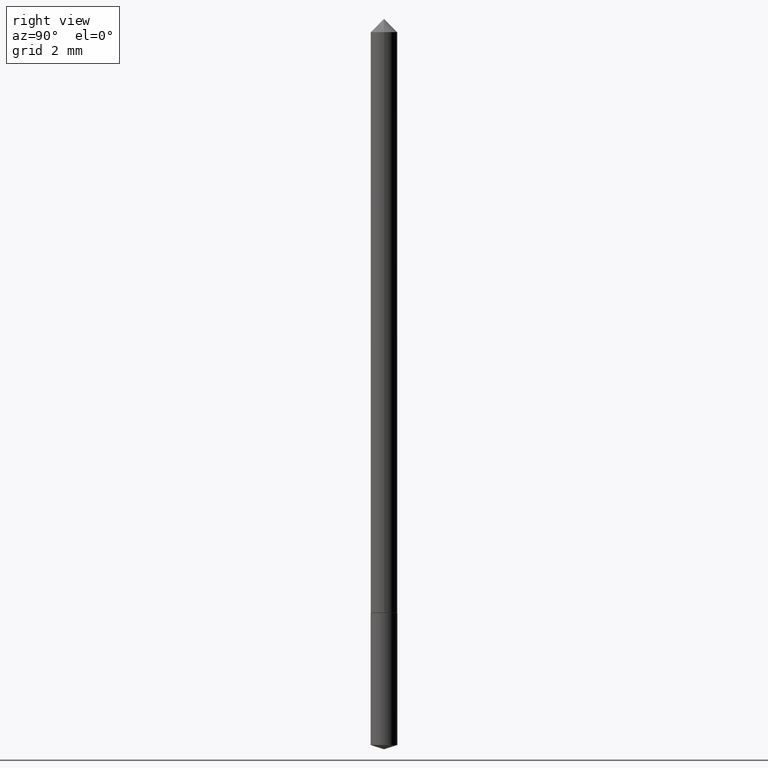
[diagram: clean part render]
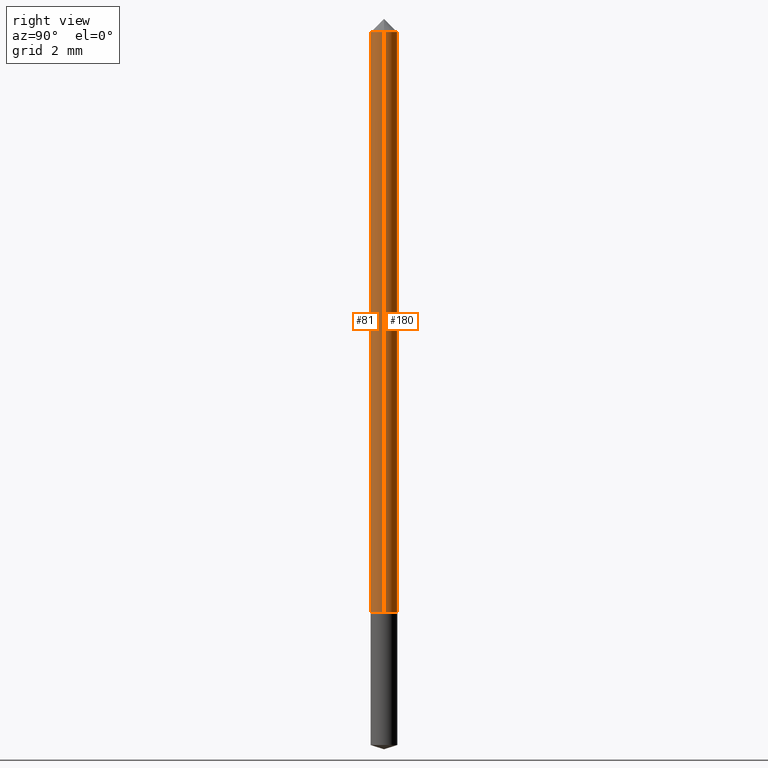
[diagram: same view with one multi-face feature highlighted, each face labeled with its STEP entity id]
A machine part, right view. The highlighted faces form ONE feature: a constant-radius fillet chain: 2 tangent blend faces with common blend radius 0.4496 mm. The faces share edges in the B-rep.
Their STEP definitions:
[1] entity #81 (Cylinder):
#1 = CARTESIAN_POINT ( 'NONE',  ( -0.01770000000000005250, 1.257660642295381059E-16, -8.706515109751208922E-31 ) ) ;
#9 = ORIENTED_EDGE ( 'NONE', *, *, #195, .F. ) ;
#45 = VERTEX_POINT ( 'NONE', #224 ) ;
#49 = FACE_OUTER_BOUND ( 'NONE', #244, .T. ) ;
#58 = DIRECTION ( 'NONE',  ( 1.000000000000000000, -6.982962677686266711E-15, 4.876176775795935793E-29 ) ) ;
#62 = ORIENTED_EDGE ( 'NONE', *, *, #303, .F. ) ;
#71 = DIRECTION ( 'NONE',  ( -2.445468806185136597E-29, 3.491481338843145583E-15, 1.000000000000000000 ) ) ;
#80 = AXIS2_PLACEMENT_3D ( 'NONE', #118, #216, #192 ) ;
#81 = ADVANCED_FACE ( 'NONE', ( #49 ), #104, .T. ) ;
#104 = CYLINDRICAL_SURFACE ( 'NONE', #176, 0.01770000000000005250 ) ;
#118 = CARTESIAN_POINT ( 'NONE',  ( 7.642090019328600035E-31, -1.091087918388489897E-16, -0.03125000000000020123 ) ) ;
#122 = VERTEX_POINT ( 'NONE', #222 ) ;
#124 = CARTESIAN_POINT ( 'NONE',  ( 1.962977810724808948E-29, -2.802612070689392664E-15, -0.8026999999999998581 ) ) ;
#146 = CARTESIAN_POINT ( 'NONE',  ( -0.01770000000000000392, -1.330094367034580829E-15, -0.03125000000000020123 ) ) ;
#152 = CIRCLE ( 'NONE', #80, 0.01770000000000000392 ) ;
#154 = ORIENTED_EDGE ( 'NONE', *, *, #284, .T. ) ;
#161 = VECTOR ( 'NONE', #207, 39.37007874015748143 ) ;
#163 = CARTESIAN_POINT ( 'NONE',  ( 0.000000000000000000, 0.000000000000000000, 0.000000000000000000 ) ) ;
#176 = AXIS2_PLACEMENT_3D ( 'NONE', #163, #301, #58 ) ;
#183 = DIRECTION ( 'NONE',  ( 1.000000000000000000, -6.982962677686261189E-15, 0.000000000000000000 ) ) ;
#189 = ORIENTED_EDGE ( 'NONE', *, *, #320, .T. ) ;
#192 = DIRECTION ( 'NONE',  ( 1.000000000000000000, -6.982962677686265922E-15, 0.000000000000000000 ) ) ;
#195 = EDGE_CURVE ( 'NONE', #313, #220, #249, .T. ) ;
#207 = DIRECTION ( 'NONE',  ( -2.445468806185136877E-29, 3.491481338843145188E-15, 1.000000000000000000 ) ) ;
#216 = DIRECTION ( 'NONE',  ( -2.445468806185136597E-29, 3.491481338843145583E-15, 1.000000000000000000 ) ) ;
#219 = CARTESIAN_POINT ( 'NONE',  ( 0.01770000000000005250, -1.235984393950472844E-16, 8.630832893158832123E-31 ) ) ;
#220 = VERTEX_POINT ( 'NONE', #146 ) ;
#222 = CARTESIAN_POINT ( 'NONE',  ( 0.01770000000000000392, -2.327072312338959414E-16, -0.03125000000000020123 ) ) ;
#224 = CARTESIAN_POINT ( 'NONE',  ( 0.01770000000000009760, -2.926210510084440245E-15, -0.8026999999999998581 ) ) ;
#225 = AXIS2_PLACEMENT_3D ( 'NONE', #124, #71, #183 ) ;
#238 = VECTOR ( 'NONE', #310, 39.37007874015748143 ) ;
#243 = LINE ( 'NONE', #219, #238 ) ;
#244 = EDGE_LOOP ( 'NONE', ( #9, #154, #189, #62 ) ) ;
#249 = LINE ( 'NONE', #1, #161 ) ;
#284 = EDGE_CURVE ( 'NONE', #313, #45, #361, .T. ) ;
#301 = DIRECTION ( 'NONE',  ( -2.445468806185136597E-29, 3.491481338843145583E-15, 1.000000000000000000 ) ) ;
#303 = EDGE_CURVE ( 'NONE', #220, #122, #152, .T. ) ;
#310 = DIRECTION ( 'NONE',  ( -2.445468806185136877E-29, 3.491481338843145188E-15, 1.000000000000000000 ) ) ;
#313 = VERTEX_POINT ( 'NONE', #336 ) ;
#320 = EDGE_CURVE ( 'NONE', #45, #122, #243, .T. ) ;
#336 = CARTESIAN_POINT ( 'NONE',  ( -0.01770000000000009760, -2.676846006459854189E-15, -0.8026999999999998581 ) ) ;
#361 = CIRCLE ( 'NONE', #225, 0.01770000000000009760 ) ;
[2] entity #180 (Cylinder):
#1 = CARTESIAN_POINT ( 'NONE',  ( -0.01770000000000005250, 1.257660642295381059E-16, -8.706515109751208922E-31 ) ) ;
#35 = FACE_OUTER_BOUND ( 'NONE', #346, .T. ) ;
#44 = AXIS2_PLACEMENT_3D ( 'NONE', #255, #257, #335 ) ;
#45 = VERTEX_POINT ( 'NONE', #224 ) ;
#67 = EDGE_CURVE ( 'NONE', #45, #313, #112, .T. ) ;
#112 = CIRCLE ( 'NONE', #44, 0.01770000000000009760 ) ;
#122 = VERTEX_POINT ( 'NONE', #222 ) ;
#126 = CIRCLE ( 'NONE', #182, 0.01770000000000000392 ) ;
#127 = ORIENTED_EDGE ( 'NONE', *, *, #160, .F. ) ;
#139 = DIRECTION ( 'NONE',  ( -2.445468806185136597E-29, 3.491481338843145583E-15, 1.000000000000000000 ) ) ;
#146 = CARTESIAN_POINT ( 'NONE',  ( -0.01770000000000000392, -1.330094367034580829E-15, -0.03125000000000020123 ) ) ;
#160 = EDGE_CURVE ( 'NONE', #122, #220, #126, .T. ) ;
#161 = VECTOR ( 'NONE', #207, 39.37007874015748143 ) ;
#180 = ADVANCED_FACE ( 'NONE', ( #35 ), #246, .T. ) ;
#182 = AXIS2_PLACEMENT_3D ( 'NONE', #333, #285, #228 ) ;
#195 = EDGE_CURVE ( 'NONE', #313, #220, #249, .T. ) ;
#202 = ORIENTED_EDGE ( 'NONE', *, *, #320, .F. ) ;
#207 = DIRECTION ( 'NONE',  ( -2.445468806185136877E-29, 3.491481338843145188E-15, 1.000000000000000000 ) ) ;
#219 = CARTESIAN_POINT ( 'NONE',  ( 0.01770000000000005250, -1.235984393950472844E-16, 8.630832893158832123E-31 ) ) ;
#220 = VERTEX_POINT ( 'NONE', #146 ) ;
#222 = CARTESIAN_POINT ( 'NONE',  ( 0.01770000000000000392, -2.327072312338959414E-16, -0.03125000000000020123 ) ) ;
#223 = ORIENTED_EDGE ( 'NONE', *, *, #67, .T. ) ;
#224 = CARTESIAN_POINT ( 'NONE',  ( 0.01770000000000009760, -2.926210510084440245E-15, -0.8026999999999998581 ) ) ;
#228 = DIRECTION ( 'NONE',  ( 1.000000000000000000, -6.982962677686265922E-15, 0.000000000000000000 ) ) ;
#238 = VECTOR ( 'NONE', #310, 39.37007874015748143 ) ;
#243 = LINE ( 'NONE', #219, #238 ) ;
#246 = CYLINDRICAL_SURFACE ( 'NONE', #282, 0.01770000000000005250 ) ;
#249 = LINE ( 'NONE', #1, #161 ) ;
#255 = CARTESIAN_POINT ( 'NONE',  ( 1.962977810724808948E-29, -2.802612070689392664E-15, -0.8026999999999998581 ) ) ;
#257 = DIRECTION ( 'NONE',  ( -2.445468806185136597E-29, 3.491481338843145583E-15, 1.000000000000000000 ) ) ;
#258 = ORIENTED_EDGE ( 'NONE', *, *, #195, .T. ) ;
#282 = AXIS2_PLACEMENT_3D ( 'NONE', #337, #139, #363 ) ;
#285 = DIRECTION ( 'NONE',  ( -2.445468806185136597E-29, 3.491481338843145583E-15, 1.000000000000000000 ) ) ;
#310 = DIRECTION ( 'NONE',  ( -2.445468806185136877E-29, 3.491481338843145188E-15, 1.000000000000000000 ) ) ;
#313 = VERTEX_POINT ( 'NONE', #336 ) ;
#320 = EDGE_CURVE ( 'NONE', #45, #122, #243, .T. ) ;
#333 = CARTESIAN_POINT ( 'NONE',  ( 7.642090019328600035E-31, -1.091087918388489897E-16, -0.03125000000000020123 ) ) ;
#335 = DIRECTION ( 'NONE',  ( 1.000000000000000000, -6.982962677686261189E-15, 0.000000000000000000 ) ) ;
#336 = CARTESIAN_POINT ( 'NONE',  ( -0.01770000000000009760, -2.676846006459854189E-15, -0.8026999999999998581 ) ) ;
#337 = CARTESIAN_POINT ( 'NONE',  ( 0.000000000000000000, 0.000000000000000000, 0.000000000000000000 ) ) ;
#346 = EDGE_LOOP ( 'NONE', ( #223, #258, #127, #202 ) ) ;
#363 = DIRECTION ( 'NONE',  ( 1.000000000000000000, -6.982962677686266711E-15, 4.876176775795935793E-29 ) ) ;